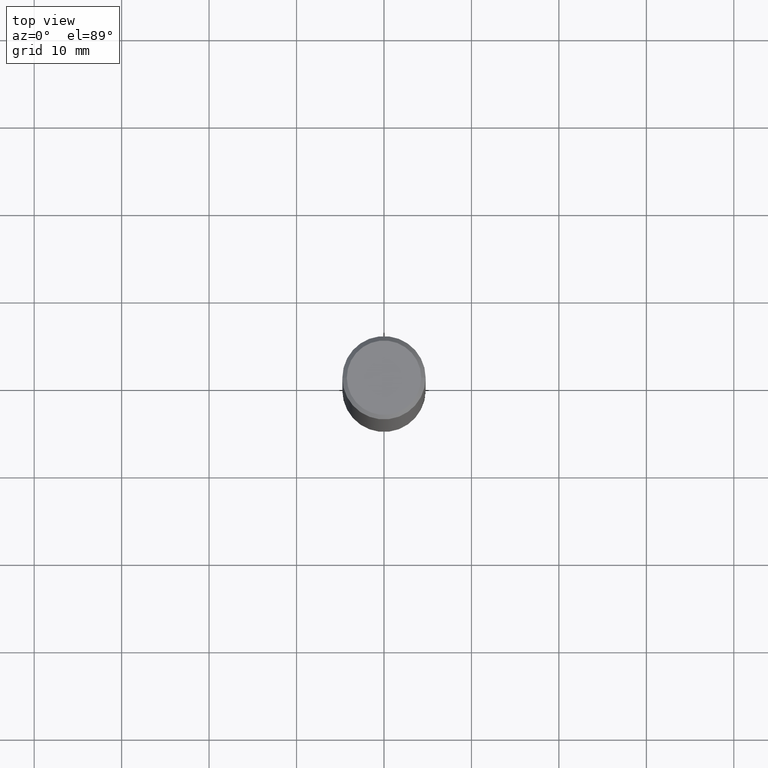
[diagram: clean part render]
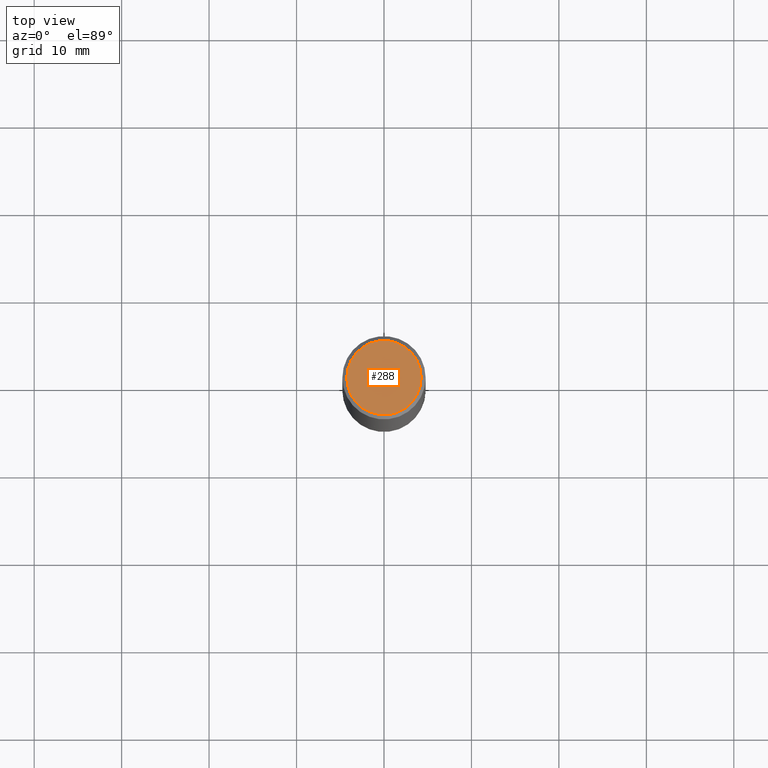
[diagram: same view with one face highlighted and labeled with its STEP entity id]
A machine part, top view. The second image highlights one B-rep face of the part: STEP entity #288.
In plain terms, the highlighted planar face has unit normal (0, -0, -1).
Its self-contained STEP definition (entity closure, byte-faithful):
#6 = EDGE_LOOP ( 'NONE', ( #343, #10 ) ) ;
#8 = VERTEX_POINT ( 'NONE', #74 ) ;
#9 = EDGE_CURVE ( 'NONE', #35, #8, #118, .T. ) ;
#10 = ORIENTED_EDGE ( 'NONE', *, *, #9, .T. ) ;
#35 = VERTEX_POINT ( 'NONE', #261 ) ;
#46 = CARTESIAN_POINT ( 'NONE',  ( 1.169646248512447820E-15, 0.1674999999999997602, -5.826888680111757675E-16 ) ) ;
#60 = EDGE_CURVE ( 'NONE', #8, #35, #124, .T. ) ;
#74 = CARTESIAN_POINT ( 'NONE',  ( -0.1674999999999997602, 1.204561061900878878E-15, 4.268512490092109750E-18 ) ) ;
#101 = DIRECTION ( 'NONE',  ( -2.445468806185136597E-29, 3.491481338843145583E-15, 1.000000000000000000 ) ) ;
#118 = CIRCLE ( 'NONE', #270, 0.1674999999999997602 ) ;
#124 = CIRCLE ( 'NONE', #134, 0.1674999999999997602 ) ;
#134 = AXIS2_PLACEMENT_3D ( 'NONE', #217, #347, #297 ) ;
#154 = CARTESIAN_POINT ( 'NONE',  ( -1.043851414335219820E-46, 1.490343170380447200E-32, 4.268512490100411279E-18 ) ) ;
#195 = PLANE ( 'NONE',  #198 ) ;
#198 = AXIS2_PLACEMENT_3D ( 'NONE', #46, #364, #221 ) ;
#217 = CARTESIAN_POINT ( 'NONE',  ( -1.043851414335219820E-46, 1.490343170380447200E-32, 4.268512490100411279E-18 ) ) ;
#221 = DIRECTION ( 'NONE',  ( -1.000000000000000000, 6.982962677686265922E-15, -4.876176775795935793E-29 ) ) ;
#241 = DIRECTION ( 'NONE',  ( 1.000000000000000000, -6.982962677686265922E-15, 4.875936752492899929E-29 ) ) ;
#261 = CARTESIAN_POINT ( 'NONE',  ( 0.1674999999999997602, -1.252653207992876711E-15, 4.268512490108880748E-18 ) ) ;
#270 = AXIS2_PLACEMENT_3D ( 'NONE', #154, #101, #241 ) ;
#280 = FACE_OUTER_BOUND ( 'NONE', #6, .T. ) ;
#288 = ADVANCED_FACE ( 'NONE', ( #280 ), #195, .F. ) ;
#297 = DIRECTION ( 'NONE',  ( 1.000000000000000000, -6.982962677686265922E-15, 4.875936752492899929E-29 ) ) ;
#343 = ORIENTED_EDGE ( 'NONE', *, *, #60, .T. ) ;
#347 = DIRECTION ( 'NONE',  ( -2.445468806185136597E-29, 3.491481338843145583E-15, 1.000000000000000000 ) ) ;
#364 = DIRECTION ( 'NONE',  ( 2.438088387897960049E-29, -3.491481338843145188E-15, -1.000000000000000000 ) ) ;